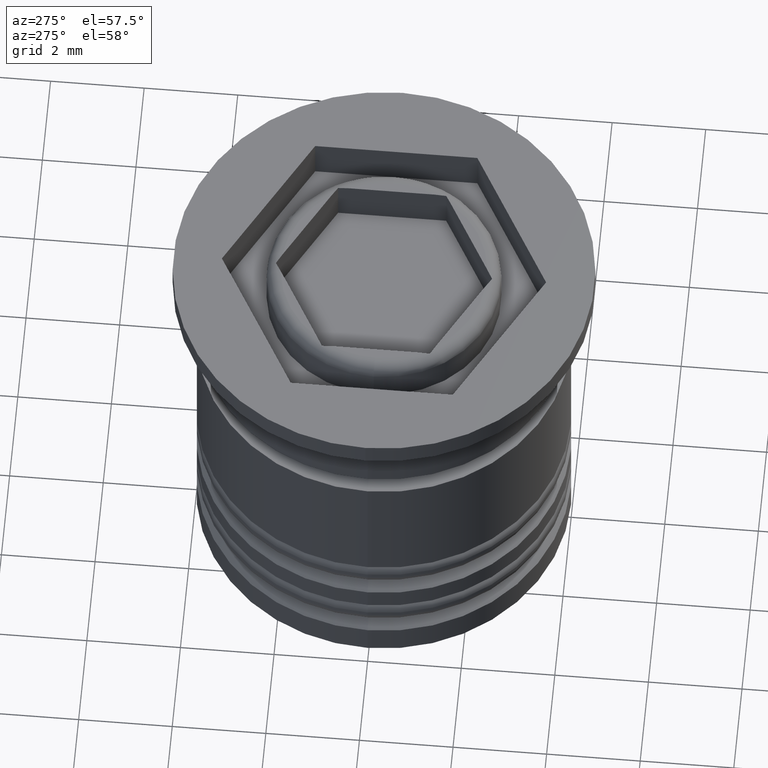
[diagram: clean part render]
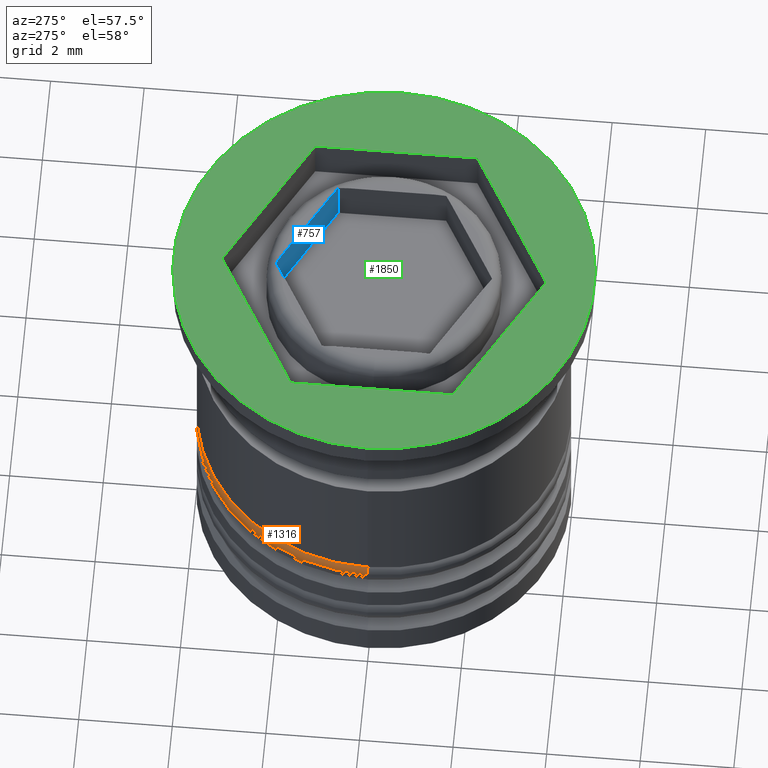
[diagram: same view with three faces highlighted in distinct colors, each labeled with its STEP entity id]
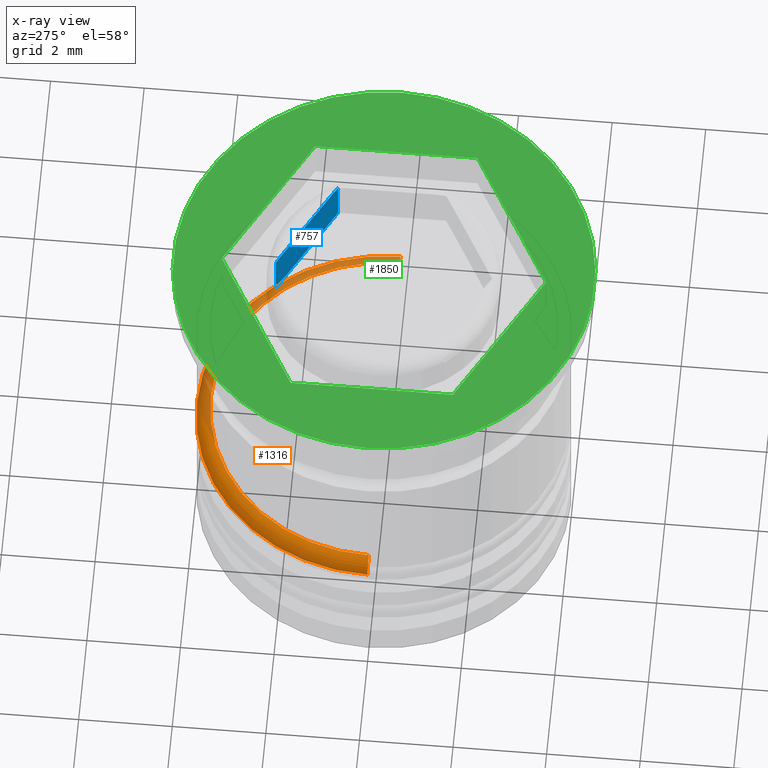
[diagram: x-ray of the same camera — body ghosted, the three highlighted faces saturated]
A machine part, auxiliary view with three faces highlighted in distinct colors.
The next image is the same camera in x-ray (body ghosted, the three faces saturated) — at least one of them is partly hidden behind the body in this view.
Their STEP definitions:

[orange] entity #1316 — the highlighted toroidal blend (fillet) surface has major radius 3.7 mm and minor (blend) radius 0.3 mm.
#10 = DIRECTION ( 'NONE',  ( -1.000000000000000000, 0.000000000000000000, 0.000000000000000000 ) ) ;
#92 = CARTESIAN_POINT ( 'NONE',  ( 4.000000000000000888, 0.000000000000000000, -5.799999999999999822 ) ) ;
#104 = CARTESIAN_POINT ( 'NONE',  ( -4.000000000000000888, 4.898587196589413815E-16, -5.799999999999999822 ) ) ;
#120 = AXIS2_PLACEMENT_3D ( 'NONE', #925, #454, #1379 ) ;
#142 = DIRECTION ( 'NONE',  ( -0.000000000000000000, -0.000000000000000000, 1.000000000000000000 ) ) ;
#152 = VERTEX_POINT ( 'NONE', #436 ) ;
#159 = DIRECTION ( 'NONE',  ( 0.000000000000000000, 0.000000000000000000, -1.000000000000000000 ) ) ;
#182 = DIRECTION ( 'NONE',  ( -0.000000000000000000, -1.000000000000000000, -0.000000000000000000 ) ) ;
#184 = EDGE_CURVE ( 'NONE', #152, #1983, #319, .T. ) ;
#221 = DIRECTION ( 'NONE',  ( -1.000000000000000000, 0.000000000000000000, 0.000000000000000000 ) ) ;
#319 = CIRCLE ( 'NONE', #120, 0.2999999999999999334 ) ;
#367 = EDGE_CURVE ( 'NONE', #1161, #1628, #1534, .T. ) ;
#430 = EDGE_CURVE ( 'NONE', #1628, #1983, #493, .T. ) ;
#436 = CARTESIAN_POINT ( 'NONE',  ( 3.700000000000001066, 4.714890176717310501E-16, -5.500000000000000000 ) ) ;
#454 = DIRECTION ( 'NONE',  ( -1.224646799147353207E-16, 1.000000000000000000, 0.000000000000000000 ) ) ;
#493 = CIRCLE ( 'NONE', #1766, 4.000000000000000888 ) ;
#612 = CARTESIAN_POINT ( 'NONE',  ( 0.000000000000000000, 0.000000000000000000, -5.799999999999999822 ) ) ;
#800 = CARTESIAN_POINT ( 'NONE',  ( 0.000000000000000000, 0.000000000000000000, -5.500000000000000000 ) ) ;
#817 = ORIENTED_EDGE ( 'NONE', *, *, #1358, .F. ) ;
#842 = CARTESIAN_POINT ( 'NONE',  ( -3.700000000000001066, 0.000000000000000000, -5.799999999999999822 ) ) ;
#907 = EDGE_LOOP ( 'NONE', ( #817, #1617, #1509, #930 ) ) ;
#925 = CARTESIAN_POINT ( 'NONE',  ( 3.700000000000001066, 4.531193156845208173E-16, -5.799999999999999822 ) ) ;
#930 = ORIENTED_EDGE ( 'NONE', *, *, #367, .F. ) ;
#946 = CIRCLE ( 'NONE', #1119, 3.700000000000001066 ) ;
#948 = DIRECTION ( 'NONE',  ( -1.000000000000000000, 0.000000000000000000, 0.000000000000000000 ) ) ;
#982 = TOROIDAL_SURFACE ( 'NONE', #1017, 3.700000000000001066, 0.2999999999999999889 ) ;
#1005 = CARTESIAN_POINT ( 'NONE',  ( 0.000000000000000000, 0.000000000000000000, -5.799999999999999822 ) ) ;
#1017 = AXIS2_PLACEMENT_3D ( 'NONE', #612, #159, #10 ) ;
#1119 = AXIS2_PLACEMENT_3D ( 'NONE', #800, #142, #948 ) ;
#1161 = VERTEX_POINT ( 'NONE', #1827 ) ;
#1170 = DIRECTION ( 'NONE',  ( 0.000000000000000000, 0.000000000000000000, -1.000000000000000000 ) ) ;
#1316 = ADVANCED_FACE ( 'NONE', ( #1732 ), #982, .T. ) ;
#1358 = EDGE_CURVE ( 'NONE', #152, #1161, #946, .T. ) ;
#1379 = DIRECTION ( 'NONE',  ( -1.000000000000000000, -1.224646799147353207E-16, 0.000000000000000000 ) ) ;
#1509 = ORIENTED_EDGE ( 'NONE', *, *, #430, .F. ) ;
#1534 = CIRCLE ( 'NONE', #2000, 0.2999999999999999334 ) ;
#1617 = ORIENTED_EDGE ( 'NONE', *, *, #184, .T. ) ;
#1628 = VERTEX_POINT ( 'NONE', #104 ) ;
#1636 = DIRECTION ( 'NONE',  ( 0.000000000000000000, 0.000000000000000000, -1.000000000000000000 ) ) ;
#1732 = FACE_OUTER_BOUND ( 'NONE', #907, .T. ) ;
#1766 = AXIS2_PLACEMENT_3D ( 'NONE', #1005, #1636, #221 ) ;
#1827 = CARTESIAN_POINT ( 'NONE',  ( -3.700000000000001066, 0.000000000000000000, -5.500000000000000000 ) ) ;
#1983 = VERTEX_POINT ( 'NONE', #92 ) ;
#2000 = AXIS2_PLACEMENT_3D ( 'NONE', #842, #182, #1170 ) ;

[blue] entity #757 — the highlighted planar face has unit normal (0.5, 0.866, 0).
#22 = CARTESIAN_POINT ( 'NONE',  ( 1.863000859327776260, 1.233797029125107692, 2.956739694495964183E-17 ) ) ;
#211 = DIRECTION ( 'NONE',  ( 0.4999999999999998335, 0.8660254037844388186, 0.000000000000000000 ) ) ;
#263 = CARTESIAN_POINT ( 'NONE',  ( 2.000000000000000888, 1.154700538379251684, -7.110100926607787919 ) ) ;
#268 = LINE ( 'NONE', #1514, #1776 ) ;
#307 = B_SPLINE_CURVE_WITH_KNOTS ( 'NONE', 3,
 ( #1969, #1030, #1500, #1981 ),
 .UNSPECIFIED., .F., .F.,
 ( 4, 4 ),
 ( 2.996442637876366042E-19, 0.0002390796478456412068 ),
 .UNSPECIFIED. ) ;
#312 = CARTESIAN_POINT ( 'NONE',  ( 2.000000000000000888, 1.154700538379251684, -1.000000000000000000 ) ) ;
#324 = CARTESIAN_POINT ( 'NONE',  ( 0.000000000000000000, 2.309401076758503368, -1.000000000000000000 ) ) ;
#333 = DIRECTION ( 'NONE',  ( -0.000000000000000000, -0.000000000000000000, 1.000000000000000000 ) ) ;
#370 = PLANE ( 'NONE',  #2037 ) ;
#479 = B_SPLINE_CURVE_WITH_KNOTS ( 'NONE', 3,
 ( #1253, #1899, #22, #2036 ),
 .UNSPECIFIED., .F., .F.,
 ( 4, 4 ),
 ( 3.388131789017201356E-21, 0.0002390796478456426433 ),
 .UNSPECIFIED. ) ;
#495 = LINE ( 'NONE', #312, #1341 ) ;
#623 = VECTOR ( 'NONE', #1841, 1000.000000000000000 ) ;
#648 = EDGE_CURVE ( 'NONE', #1188, #1717, #479, .T. ) ;
#674 = VERTEX_POINT ( 'NONE', #324 ) ;
#709 = ORIENTED_EDGE ( 'NONE', *, *, #1961, .T. ) ;
#738 = LINE ( 'NONE', #263, #623 ) ;
#757 = ADVANCED_FACE ( 'NONE', ( #818 ), #370, .F. ) ;
#779 = DIRECTION ( 'NONE',  ( 0.8660254037844388186, -0.4999999999999998335, 0.000000000000000000 ) ) ;
#818 = FACE_OUTER_BOUND ( 'NONE', #1338, .T. ) ;
#851 = ORIENTED_EDGE ( 'NONE', *, *, #648, .T. ) ;
#870 = CARTESIAN_POINT ( 'NONE',  ( 2.000000000000000888, 1.154700538379251684, -0.02065898188042657874 ) ) ;
#935 = CARTESIAN_POINT ( 'NONE',  ( 0.000000000000000000, 2.309401076758503368, -7.110100926607787919 ) ) ;
#966 = CARTESIAN_POINT ( 'NONE',  ( 2.000000000000000888, 1.154700538379251684, -7.110100926607787919 ) ) ;
#1022 = ORIENTED_EDGE ( 'NONE', *, *, #1746, .F. ) ;
#1030 = CARTESIAN_POINT ( 'NONE',  ( 0.1369991406722236571, 2.230304586012647139, 0.000000000000000000 ) ) ;
#1052 = DIRECTION ( 'NONE',  ( -0.8660254037844387076, 0.4999999999999998335, 0.000000000000000000 ) ) ;
#1105 = CARTESIAN_POINT ( 'NONE',  ( 0.000000000000000000, 2.309401076758503368, -0.02065898188042571137 ) ) ;
#1180 = EDGE_CURVE ( 'NONE', #1842, #1188, #738, .T. ) ;
#1188 = VERTEX_POINT ( 'NONE', #870 ) ;
#1253 = CARTESIAN_POINT ( 'NONE',  ( 2.000000000000000888, 1.154700538379251684, -0.02065898188042657874 ) ) ;
#1338 = EDGE_LOOP ( 'NONE', ( #1747, #851, #709, #1854, #1022, #2014 ) ) ;
#1341 = VECTOR ( 'NONE', #779, 999.9999999999998863 ) ;
#1415 = EDGE_CURVE ( 'NONE', #674, #1842, #495, .T. ) ;
#1416 = CARTESIAN_POINT ( 'NONE',  ( 1.793725393319377970, 1.273793238073292589, 0.000000000000000000 ) ) ;
#1500 = CARTESIAN_POINT ( 'NONE',  ( 0.06811851271951854803, 2.270072835103092324, -0.005256474890640251349 ) ) ;
#1514 = CARTESIAN_POINT ( 'NONE',  ( 2.000000000000000888, 1.154700538379251684, 0.000000000000000000 ) ) ;
#1599 = DIRECTION ( 'NONE',  ( -0.8660254037844387076, 0.4999999999999997780, 0.000000000000000000 ) ) ;
#1601 = VERTEX_POINT ( 'NONE', #1824 ) ;
#1717 = VERTEX_POINT ( 'NONE', #1416 ) ;
#1742 = LINE ( 'NONE', #935, #1774 ) ;
#1746 = EDGE_CURVE ( 'NONE', #674, #1787, #1742, .T. ) ;
#1747 = ORIENTED_EDGE ( 'NONE', *, *, #1180, .T. ) ;
#1774 = VECTOR ( 'NONE', #333, 1000.000000000000000 ) ;
#1776 = VECTOR ( 'NONE', #1052, 1000.000000000000114 ) ;
#1787 = VERTEX_POINT ( 'NONE', #1105 ) ;
#1824 = CARTESIAN_POINT ( 'NONE',  ( 0.2062746066806217526, 2.190308377064462242, 0.000000000000000000 ) ) ;
#1841 = DIRECTION ( 'NONE',  ( -0.000000000000000000, -0.000000000000000000, 1.000000000000000000 ) ) ;
#1842 = VERTEX_POINT ( 'NONE', #1938 ) ;
#1854 = ORIENTED_EDGE ( 'NONE', *, *, #1979, .T. ) ;
#1899 = CARTESIAN_POINT ( 'NONE',  ( 1.931881487280481924, 1.194028780034662951, -0.005256474890640377116 ) ) ;
#1938 = CARTESIAN_POINT ( 'NONE',  ( 2.000000000000000888, 1.154700538379251684, -1.000000000000000000 ) ) ;
#1961 = EDGE_CURVE ( 'NONE', #1717, #1601, #268, .T. ) ;
#1969 = CARTESIAN_POINT ( 'NONE',  ( 0.2062746066806217526, 2.190308377064462242, 0.000000000000000000 ) ) ;
#1979 = EDGE_CURVE ( 'NONE', #1601, #1787, #307, .T. ) ;
#1981 = CARTESIAN_POINT ( 'NONE',  ( 0.000000000000000000, 2.309401076758503368, -0.02065898188042571137 ) ) ;
#2014 = ORIENTED_EDGE ( 'NONE', *, *, #1415, .T. ) ;
#2036 = CARTESIAN_POINT ( 'NONE',  ( 1.793725393319377970, 1.273793238073292589, 0.000000000000000000 ) ) ;
#2037 = AXIS2_PLACEMENT_3D ( 'NONE', #966, #211, #1599 ) ;

[green] entity #1850 — the highlighted planar face has unit normal (0, -0, 1).
#74 = EDGE_CURVE ( 'NONE', #1581, #1463, #254, .T. ) ;
#148 = DIRECTION ( 'NONE',  ( 0.8660254037844385966, 0.4999999999999998890, 0.000000000000000000 ) ) ;
#157 = CARTESIAN_POINT ( 'NONE',  ( -3.394223061414856671E-17, -3.464101615137754386, 0.000000000000000000 ) ) ;
#179 = CARTESIAN_POINT ( 'NONE',  ( 0.000000000000000000, 0.000000000000000000, 0.000000000000000000 ) ) ;
#190 = CARTESIAN_POINT ( 'NONE',  ( 4.500000000000000000, 0.000000000000000000, 0.000000000000000000 ) ) ;
#241 = LINE ( 'NONE', #1497, #2002 ) ;
#254 = LINE ( 'NONE', #1367, #1798 ) ;
#262 = EDGE_CURVE ( 'NONE', #541, #1581, #1113, .T. ) ;
#292 = VECTOR ( 'NONE', #1372, 1000.000000000000000 ) ;
#308 = LINE ( 'NONE', #1565, #292 ) ;
#342 = CARTESIAN_POINT ( 'NONE',  ( 0.000000000000000000, 0.000000000000000000, 0.000000000000000000 ) ) ;
#353 = VECTOR ( 'NONE', #607, 1000.000000000000000 ) ;
#384 = DIRECTION ( 'NONE',  ( -0.8660254037844388186, 0.4999999999999997224, 0.000000000000000000 ) ) ;
#405 = CARTESIAN_POINT ( 'NONE',  ( -2.168404344971008868E-16, 3.464101615137753942, 0.000000000000000000 ) ) ;
#427 = CIRCLE ( 'NONE', #1245, 4.500000000000000000 ) ;
#478 = ORIENTED_EDGE ( 'NONE', *, *, #74, .F. ) ;
#504 = DIRECTION ( 'NONE',  ( -0.000000000000000000, -0.000000000000000000, 1.000000000000000000 ) ) ;
#535 = EDGE_LOOP ( 'NONE', ( #2021, #1849, #1152, #1796, #478, #1272 ) ) ;
#539 = PLANE ( 'NONE',  #983 ) ;
#541 = VERTEX_POINT ( 'NONE', #405 ) ;
#551 = EDGE_CURVE ( 'NONE', #890, #824, #241, .T. ) ;
#607 = DIRECTION ( 'NONE',  ( -0.8660254037844385966, -0.5000000000000001110, 0.000000000000000000 ) ) ;
#684 = ORIENTED_EDGE ( 'NONE', *, *, #1838, .T. ) ;
#705 = CARTESIAN_POINT ( 'NONE',  ( -3.000000000000000000, 1.732050807568876083, 0.000000000000000000 ) ) ;
#725 = CIRCLE ( 'NONE', #1880, 4.500000000000000000 ) ;
#726 = CARTESIAN_POINT ( 'NONE',  ( -4.500000000000000000, 5.510910596163088569E-16, 0.000000000000000000 ) ) ;
#729 = CARTESIAN_POINT ( 'NONE',  ( 3.000000000000000000, 1.732050807568877859, 0.000000000000000000 ) ) ;
#739 = VERTEX_POINT ( 'NONE', #190 ) ;
#790 = VECTOR ( 'NONE', #148, 1000.000000000000227 ) ;
#824 = VERTEX_POINT ( 'NONE', #729 ) ;
#890 = VERTEX_POINT ( 'NONE', #919 ) ;
#919 = CARTESIAN_POINT ( 'NONE',  ( 3.000000000000000000, -1.732050807568876971, 0.000000000000000000 ) ) ;
#924 = VERTEX_POINT ( 'NONE', #157 ) ;
#983 = AXIS2_PLACEMENT_3D ( 'NONE', #1279, #1587, #1621 ) ;
#1053 = VECTOR ( 'NONE', #384, 1000.000000000000114 ) ;
#1108 = DIRECTION ( 'NONE',  ( -0.000000000000000000, -0.000000000000000000, 1.000000000000000000 ) ) ;
#1113 = LINE ( 'NONE', #1728, #353 ) ;
#1128 = EDGE_LOOP ( 'NONE', ( #1559, #684 ) ) ;
#1152 = ORIENTED_EDGE ( 'NONE', *, *, #1698, .F. ) ;
#1199 = DIRECTION ( 'NONE',  ( 0.000000000000000000, 1.000000000000000000, 0.000000000000000000 ) ) ;
#1233 = LINE ( 'NONE', #1267, #790 ) ;
#1245 = AXIS2_PLACEMENT_3D ( 'NONE', #179, #1108, #1269 ) ;
#1267 = CARTESIAN_POINT ( 'NONE',  ( -3.394223061414856671E-17, -3.464101615137754386, 0.000000000000000000 ) ) ;
#1269 = DIRECTION ( 'NONE',  ( 1.000000000000000000, 0.000000000000000000, 0.000000000000000000 ) ) ;
#1272 = ORIENTED_EDGE ( 'NONE', *, *, #262, .F. ) ;
#1279 = CARTESIAN_POINT ( 'NONE',  ( 0.000000000000000000, 0.000000000000000000, 0.000000000000000000 ) ) ;
#1297 = DIRECTION ( 'NONE',  ( 1.000000000000000000, 0.000000000000000000, 0.000000000000000000 ) ) ;
#1317 = FACE_BOUND ( 'NONE', #535, .T. ) ;
#1367 = CARTESIAN_POINT ( 'NONE',  ( -3.000000000000000000, 1.732050807568876083, 0.000000000000000000 ) ) ;
#1372 = DIRECTION ( 'NONE',  ( 0.8660254037844387076, -0.4999999999999998335, 0.000000000000000000 ) ) ;
#1382 = EDGE_CURVE ( 'NONE', #739, #1986, #427, .T. ) ;
#1463 = VERTEX_POINT ( 'NONE', #1752 ) ;
#1497 = CARTESIAN_POINT ( 'NONE',  ( 3.000000000000000000, -1.732050807568876971, 0.000000000000000000 ) ) ;
#1559 = ORIENTED_EDGE ( 'NONE', *, *, #1382, .T. ) ;
#1565 = CARTESIAN_POINT ( 'NONE',  ( -3.000000000000000000, -1.732050807568877859, 0.000000000000000000 ) ) ;
#1581 = VERTEX_POINT ( 'NONE', #705 ) ;
#1587 = DIRECTION ( 'NONE',  ( 0.000000000000000000, -0.000000000000000000, 1.000000000000000000 ) ) ;
#1621 = DIRECTION ( 'NONE',  ( 1.000000000000000000, 0.000000000000000000, 0.000000000000000000 ) ) ;
#1697 = DIRECTION ( 'NONE',  ( 0.000000000000000000, -1.000000000000000000, 0.000000000000000000 ) ) ;
#1698 = EDGE_CURVE ( 'NONE', #924, #890, #1233, .T. ) ;
#1728 = CARTESIAN_POINT ( 'NONE',  ( 0.000000000000000000, 3.464101615137753942, 0.000000000000000000 ) ) ;
#1752 = CARTESIAN_POINT ( 'NONE',  ( -3.000000000000000000, -1.732050807568877859, 0.000000000000000000 ) ) ;
#1771 = EDGE_CURVE ( 'NONE', #1463, #924, #308, .T. ) ;
#1796 = ORIENTED_EDGE ( 'NONE', *, *, #1771, .F. ) ;
#1798 = VECTOR ( 'NONE', #1697, 1000.000000000000000 ) ;
#1831 = CARTESIAN_POINT ( 'NONE',  ( 3.000000000000000000, 1.732050807568877859, 0.000000000000000000 ) ) ;
#1838 = EDGE_CURVE ( 'NONE', #1986, #739, #725, .T. ) ;
#1849 = ORIENTED_EDGE ( 'NONE', *, *, #551, .F. ) ;
#1850 = ADVANCED_FACE ( 'NONE', ( #1317, #1947 ), #539, .T. ) ;
#1880 = AXIS2_PLACEMENT_3D ( 'NONE', #342, #504, #1297 ) ;
#1925 = EDGE_CURVE ( 'NONE', #824, #541, #1999, .T. ) ;
#1947 = FACE_OUTER_BOUND ( 'NONE', #1128, .T. ) ;
#1986 = VERTEX_POINT ( 'NONE', #726 ) ;
#1999 = LINE ( 'NONE', #1831, #1053 ) ;
#2002 = VECTOR ( 'NONE', #1199, 1000.000000000000000 ) ;
#2021 = ORIENTED_EDGE ( 'NONE', *, *, #1925, .F. ) ;